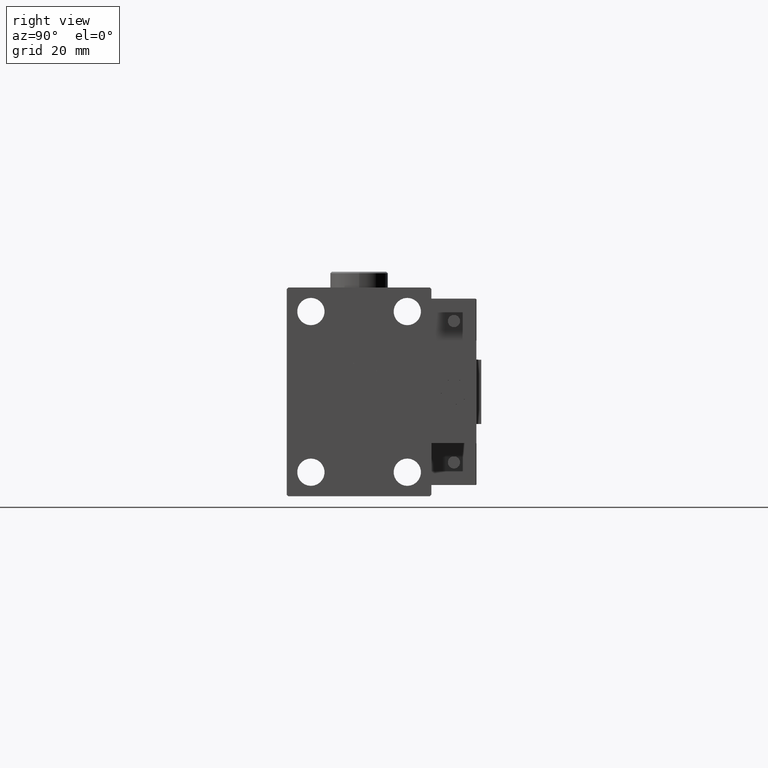
[diagram: clean part render]
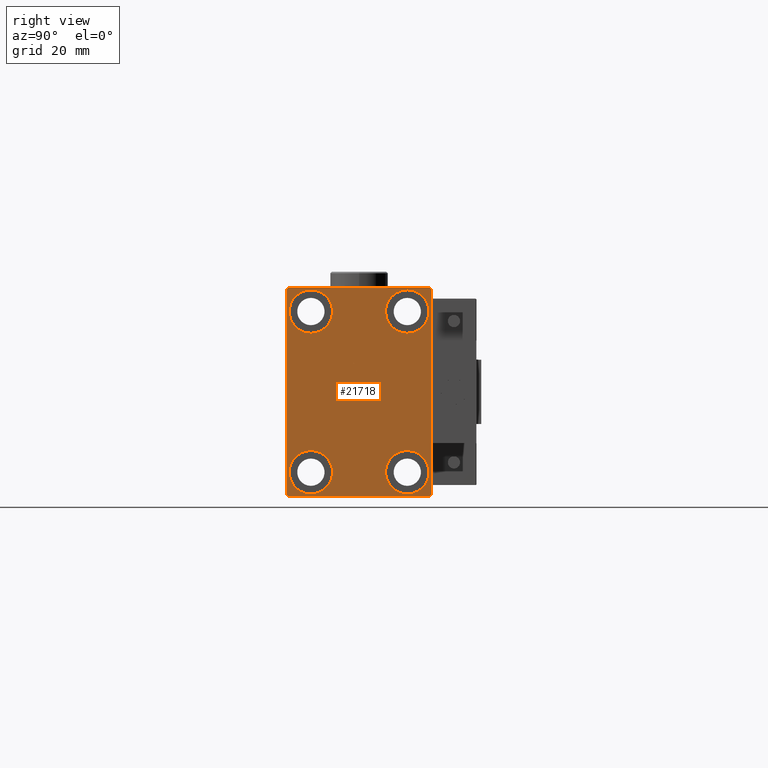
[diagram: same view with one face highlighted and labeled with its STEP entity id]
A machine part, right view. The second image highlights one B-rep face of the part: STEP entity #21718.
In plain terms, the highlighted planar face has unit normal (1, 0, 0).
Its self-contained STEP definition (entity closure, byte-faithful):
#354 = DIRECTION ( 'NONE',  ( -0.000000000000000000, 0.7071067811865524577, 0.7071067811865426878 ) ) ;
#456 = CARTESIAN_POINT ( 'NONE',  ( 90.00000000000000000, -27.25000000000061817, -27.24999999999910827 ) ) ;
#506 = DIRECTION ( 'NONE',  ( 0.000000000000000000, 1.000000000000000000, 0.000000000000000000 ) ) ;
#717 = DIRECTION ( 'NONE',  ( -0.000000000000000000, 0.7071067811865279218, -0.7071067811865671127 ) ) ;
#880 = CARTESIAN_POINT ( 'NONE',  ( 90.00000000000000000, 27.24999999999985434, -27.25000000000023093 ) ) ;
#1129 = DIRECTION ( 'NONE',  ( -1.000000000000000000, -0.000000000000000000, -0.000000000000000000 ) ) ;
#1262 = CARTESIAN_POINT ( 'NONE',  ( 90.00000000000000000, 22.50000000000000000, -32.00000000000002132 ) ) ;
#2102 = VECTOR ( 'NONE', #354, 1000.000000000000000 ) ;
#2184 = VERTEX_POINT ( 'NONE', #12863 ) ;
#2573 = FACE_BOUND ( 'NONE', #20499, .T. ) ;
#2943 = ORIENTED_EDGE ( 'NONE', *, *, #15583, .T. ) ;
#3164 = CARTESIAN_POINT ( 'NONE',  ( 90.00000000000000000, -14.99999999999999645, 25.00000000000000000 ) ) ;
#3441 = EDGE_CURVE ( 'NONE', #25162, #16348, #25430, .T. ) ;
#3451 = CARTESIAN_POINT ( 'NONE',  ( 90.00000000000000000, 14.99999999999999645, -25.00000000000000000 ) ) ;
#3574 = VECTOR ( 'NONE', #51483, 1000.000000000000000 ) ;
#4292 = EDGE_CURVE ( 'NONE', #16348, #25162, #35011, .T. ) ;
#4415 = LINE ( 'NONE', #26384, #36968 ) ;
#4517 = DIRECTION ( 'NONE',  ( 0.000000000000000000, 0.000000000000000000, 1.000000000000000000 ) ) ;
#5072 = VERTEX_POINT ( 'NONE', #30158 ) ;
#6631 = ORIENTED_EDGE ( 'NONE', *, *, #14064, .T. ) ;
#7247 = PLANE ( 'NONE',  #33831 ) ;
#7372 = AXIS2_PLACEMENT_3D ( 'NONE', #3164, #37283, #29003 ) ;
#7391 = ORIENTED_EDGE ( 'NONE', *, *, #29006, .T. ) ;
#7806 = ORIENTED_EDGE ( 'NONE', *, *, #29067, .T. ) ;
#7842 = DIRECTION ( 'NONE',  ( -1.000000000000000000, -0.000000000000000000, -0.000000000000000000 ) ) ;
#8086 = EDGE_CURVE ( 'NONE', #20500, #39597, #50553, .T. ) ;
#9762 = LINE ( 'NONE', #456, #27449 ) ;
#9939 = VECTOR ( 'NONE', #25214, 999.9999999999998863 ) ;
#10013 = VERTEX_POINT ( 'NONE', #27141 ) ;
#10443 = EDGE_CURVE ( 'NONE', #44156, #25782, #28729, .T. ) ;
#10633 = EDGE_LOOP ( 'NONE', ( #23398, #7806, #46210, #25529, #36848, #2943, #49123, #6631 ) ) ;
#11161 = DIRECTION ( 'NONE',  ( -1.000000000000000000, -0.000000000000000000, -0.000000000000000000 ) ) ;
#11372 = CARTESIAN_POINT ( 'NONE',  ( 90.00000000000000000, 0.000000000000000000, 0.000000000000000000 ) ) ;
#11423 = AXIS2_PLACEMENT_3D ( 'NONE', #3451, #11161, #15548 ) ;
#11518 = EDGE_LOOP ( 'NONE', ( #24243, #7391 ) ) ;
#12863 = CARTESIAN_POINT ( 'NONE',  ( 90.00000000000000000, -22.50000000000000711, 31.99999999999999289 ) ) ;
#13244 = LINE ( 'NONE', #880, #2102 ) ;
#14064 = EDGE_CURVE ( 'NONE', #25782, #10013, #40435, .T. ) ;
#14067 = CARTESIAN_POINT ( 'NONE',  ( 90.00000000000000000, 22.49999999999999289, 32.50000000000000000 ) ) ;
#14323 = ORIENTED_EDGE ( 'NONE', *, *, #18630, .T. ) ;
#15212 = DIRECTION ( 'NONE',  ( 1.000000000000000000, 0.000000000000000000, 0.000000000000000000 ) ) ;
#15548 = DIRECTION ( 'NONE',  ( 0.000000000000000000, 0.000000000000000000, 1.000000000000000000 ) ) ;
#15583 = EDGE_CURVE ( 'NONE', #39597, #44156, #13244, .T. ) ;
#16348 = VERTEX_POINT ( 'NONE', #46339 ) ;
#16491 = CARTESIAN_POINT ( 'NONE',  ( 90.00000000000000000, -15.00000000000000355, -25.00000000000000000 ) ) ;
#17172 = DIRECTION ( 'NONE',  ( -1.000000000000000000, -0.000000000000000000, -0.000000000000000000 ) ) ;
#18630 = EDGE_CURVE ( 'NONE', #46523, #30368, #38129, .T. ) ;
#18802 = FACE_BOUND ( 'NONE', #26112, .T. ) ;
#19344 = FACE_OUTER_BOUND ( 'NONE', #10633, .T. ) ;
#19631 = DIRECTION ( 'NONE',  ( 0.000000000000000000, 0.000000000000000000, -1.000000000000000000 ) ) ;
#20006 = EDGE_CURVE ( 'NONE', #30173, #32873, #40793, .T. ) ;
#20220 = CARTESIAN_POINT ( 'NONE',  ( 90.00000000000000000, 15.00000000000000355, 25.00000000000000000 ) ) ;
#20499 = EDGE_LOOP ( 'NONE', ( #35066, #32327 ) ) ;
#20500 = VERTEX_POINT ( 'NONE', #20767 ) ;
#20767 = CARTESIAN_POINT ( 'NONE',  ( 90.00000000000000000, -22.00000000000002132, -32.50000000000000711 ) ) ;
#21718 = ADVANCED_FACE ( 'NONE', ( #2573, #49040, #52353, #18802, #19344 ), #7247, .T. ) ;
#22288 = DIRECTION ( 'NONE',  ( 0.000000000000000000, 0.000000000000000000, 1.000000000000000000 ) ) ;
#23398 = ORIENTED_EDGE ( 'NONE', *, *, #53466, .T. ) ;
#23596 = CARTESIAN_POINT ( 'NONE',  ( 90.00000000000000000, 15.00000000000000355, 31.75000000000000000 ) ) ;
#24243 = ORIENTED_EDGE ( 'NONE', *, *, #25596, .T. ) ;
#24328 = CARTESIAN_POINT ( 'NONE',  ( 90.00000000000000000, 22.50000000000000000, -32.50000000000000711 ) ) ;
#24466 = ORIENTED_EDGE ( 'NONE', *, *, #35673, .T. ) ;
#25162 = VERTEX_POINT ( 'NONE', #50313 ) ;
#25214 = DIRECTION ( 'NONE',  ( 0.000000000000000000, -0.7071067811865525687, -0.7071067811865425767 ) ) ;
#25430 = CIRCLE ( 'NONE', #31586, 6.749999999999999112 ) ;
#25529 = ORIENTED_EDGE ( 'NONE', *, *, #28258, .T. ) ;
#25596 = EDGE_CURVE ( 'NONE', #32429, #45229, #48397, .T. ) ;
#25641 = CARTESIAN_POINT ( 'NONE',  ( 90.00000000000000000, -15.00000000000000355, -18.25000000000000355 ) ) ;
#25782 = VERTEX_POINT ( 'NONE', #35593 ) ;
#25881 = CARTESIAN_POINT ( 'NONE',  ( 90.00000000000000000, 14.99999999999999645, -25.00000000000000000 ) ) ;
#26112 = EDGE_LOOP ( 'NONE', ( #24466, #37656 ) ) ;
#26345 = VECTOR ( 'NONE', #506, 1000.000000000000000 ) ;
#26384 = CARTESIAN_POINT ( 'NONE',  ( 90.00000000000000000, -22.50000000000000711, 32.49999999999999289 ) ) ;
#26433 = CIRCLE ( 'NONE', #40522, 6.749999999999999112 ) ;
#26939 = CARTESIAN_POINT ( 'NONE',  ( 90.00000000000000000, 27.25000000000045475, 27.24999999999932143 ) ) ;
#27141 = CARTESIAN_POINT ( 'NONE',  ( 90.00000000000000000, 21.99999999999999289, 32.50000000000000000 ) ) ;
#27207 = EDGE_LOOP ( 'NONE', ( #14323, #40216 ) ) ;
#27449 = VECTOR ( 'NONE', #717, 1000.000000000000000 ) ;
#28258 = EDGE_CURVE ( 'NONE', #28481, #20500, #9762, .T. ) ;
#28481 = VERTEX_POINT ( 'NONE', #46840 ) ;
#28538 = AXIS2_PLACEMENT_3D ( 'NONE', #34761, #17172, #42729 ) ;
#28729 = LINE ( 'NONE', #24328, #50158 ) ;
#28879 = DIRECTION ( 'NONE',  ( 0.000000000000000000, 0.000000000000000000, 1.000000000000000000 ) ) ;
#29003 = DIRECTION ( 'NONE',  ( 0.000000000000000000, 0.000000000000000000, 1.000000000000000000 ) ) ;
#29006 = EDGE_CURVE ( 'NONE', #45229, #32429, #44173, .T. ) ;
#29067 = EDGE_CURVE ( 'NONE', #5072, #2184, #31287, .T. ) ;
#29274 = AXIS2_PLACEMENT_3D ( 'NONE', #36547, #36268, #48330 ) ;
#30158 = CARTESIAN_POINT ( 'NONE',  ( 90.00000000000000000, -21.99999999999998579, 32.49999999999999289 ) ) ;
#30173 = VERTEX_POINT ( 'NONE', #25641 ) ;
#30368 = VERTEX_POINT ( 'NONE', #37463 ) ;
#31134 = CIRCLE ( 'NONE', #28538, 6.749999999999999112 ) ;
#31287 = LINE ( 'NONE', #32939, #9939 ) ;
#31586 = AXIS2_PLACEMENT_3D ( 'NONE', #25881, #1129, #22288 ) ;
#32327 = ORIENTED_EDGE ( 'NONE', *, *, #4292, .T. ) ;
#32429 = VERTEX_POINT ( 'NONE', #53493 ) ;
#32745 = CARTESIAN_POINT ( 'NONE',  ( 90.00000000000000000, -14.99999999999999645, 18.25000000000000355 ) ) ;
#32873 = VERTEX_POINT ( 'NONE', #44300 ) ;
#32939 = CARTESIAN_POINT ( 'NONE',  ( 90.00000000000000000, -27.24999999999984368, 27.25000000000022382 ) ) ;
#33267 = DIRECTION ( 'NONE',  ( -1.000000000000000000, -0.000000000000000000, -0.000000000000000000 ) ) ;
#33580 = DIRECTION ( 'NONE',  ( 0.000000000000000000, 0.000000000000000000, -1.000000000000000000 ) ) ;
#33831 = AXIS2_PLACEMENT_3D ( 'NONE', #11372, #15212, #19631 ) ;
#34061 = CARTESIAN_POINT ( 'NONE',  ( 90.00000000000000000, -22.50000000000000711, -32.50000000000000711 ) ) ;
#34326 = DIRECTION ( 'NONE',  ( 0.000000000000000000, 0.000000000000000000, 1.000000000000000000 ) ) ;
#34761 = CARTESIAN_POINT ( 'NONE',  ( 90.00000000000000000, -15.00000000000000355, -25.00000000000000000 ) ) ;
#35011 = CIRCLE ( 'NONE', #11423, 6.749999999999999112 ) ;
#35066 = ORIENTED_EDGE ( 'NONE', *, *, #3441, .T. ) ;
#35593 = CARTESIAN_POINT ( 'NONE',  ( 90.00000000000000000, 22.49999999999999289, 31.99999999999997868 ) ) ;
#35673 = EDGE_CURVE ( 'NONE', #32873, #30173, #31134, .T. ) ;
#36120 = AXIS2_PLACEMENT_3D ( 'NONE', #20220, #7842, #4517 ) ;
#36268 = DIRECTION ( 'NONE',  ( -1.000000000000000000, -0.000000000000000000, -0.000000000000000000 ) ) ;
#36547 = CARTESIAN_POINT ( 'NONE',  ( 90.00000000000000000, 15.00000000000000355, 25.00000000000000000 ) ) ;
#36848 = ORIENTED_EDGE ( 'NONE', *, *, #8086, .T. ) ;
#36968 = VECTOR ( 'NONE', #33580, 1000.000000000000000 ) ;
#37283 = DIRECTION ( 'NONE',  ( -1.000000000000000000, -0.000000000000000000, -0.000000000000000000 ) ) ;
#37463 = CARTESIAN_POINT ( 'NONE',  ( 90.00000000000000000, -14.99999999999999645, 31.75000000000000000 ) ) ;
#37656 = ORIENTED_EDGE ( 'NONE', *, *, #20006, .T. ) ;
#38129 = CIRCLE ( 'NONE', #7372, 6.749999999999999112 ) ;
#39597 = VERTEX_POINT ( 'NONE', #41820 ) ;
#39902 = DIRECTION ( 'NONE',  ( -0.000000000000000000, -0.7071067811865328068, 0.7071067811865622277 ) ) ;
#40216 = ORIENTED_EDGE ( 'NONE', *, *, #51576, .T. ) ;
#40435 = LINE ( 'NONE', #26939, #53839 ) ;
#40522 = AXIS2_PLACEMENT_3D ( 'NONE', #51366, #50562, #34326 ) ;
#40793 = CIRCLE ( 'NONE', #44294, 6.749999999999999112 ) ;
#41820 = CARTESIAN_POINT ( 'NONE',  ( 90.00000000000000000, 21.99999999999999289, -32.50000000000000711 ) ) ;
#42729 = DIRECTION ( 'NONE',  ( 0.000000000000000000, 0.000000000000000000, 1.000000000000000000 ) ) ;
#44156 = VERTEX_POINT ( 'NONE', #1262 ) ;
#44173 = CIRCLE ( 'NONE', #29274, 6.749999999999999112 ) ;
#44294 = AXIS2_PLACEMENT_3D ( 'NONE', #16491, #33267, #28879 ) ;
#44300 = CARTESIAN_POINT ( 'NONE',  ( 90.00000000000000000, -15.00000000000000355, -31.75000000000000000 ) ) ;
#45229 = VERTEX_POINT ( 'NONE', #23596 ) ;
#45498 = DIRECTION ( 'NONE',  ( 0.000000000000000000, -1.067522139062650425E-16, 1.000000000000000000 ) ) ;
#46210 = ORIENTED_EDGE ( 'NONE', *, *, #50188, .T. ) ;
#46339 = CARTESIAN_POINT ( 'NONE',  ( 90.00000000000000000, 14.99999999999999645, -18.25000000000000355 ) ) ;
#46523 = VERTEX_POINT ( 'NONE', #32745 ) ;
#46840 = CARTESIAN_POINT ( 'NONE',  ( 90.00000000000000000, -22.50000000000000711, -31.99999999999999289 ) ) ;
#48163 = LINE ( 'NONE', #14067, #3574 ) ;
#48330 = DIRECTION ( 'NONE',  ( 0.000000000000000000, 0.000000000000000000, 1.000000000000000000 ) ) ;
#48397 = CIRCLE ( 'NONE', #36120, 6.749999999999999112 ) ;
#49040 = FACE_BOUND ( 'NONE', #27207, .T. ) ;
#49123 = ORIENTED_EDGE ( 'NONE', *, *, #10443, .T. ) ;
#50158 = VECTOR ( 'NONE', #45498, 1000.000000000000000 ) ;
#50188 = EDGE_CURVE ( 'NONE', #2184, #28481, #4415, .T. ) ;
#50313 = CARTESIAN_POINT ( 'NONE',  ( 90.00000000000000000, 14.99999999999999645, -31.75000000000000000 ) ) ;
#50553 = LINE ( 'NONE', #34061, #26345 ) ;
#50562 = DIRECTION ( 'NONE',  ( -1.000000000000000000, -0.000000000000000000, -0.000000000000000000 ) ) ;
#51366 = CARTESIAN_POINT ( 'NONE',  ( 90.00000000000000000, -14.99999999999999645, 25.00000000000000000 ) ) ;
#51483 = DIRECTION ( 'NONE',  ( 0.000000000000000000, -1.000000000000000000, -1.541976423090495387E-16 ) ) ;
#51576 = EDGE_CURVE ( 'NONE', #30368, #46523, #26433, .T. ) ;
#52353 = FACE_BOUND ( 'NONE', #11518, .T. ) ;
#53466 = EDGE_CURVE ( 'NONE', #10013, #5072, #48163, .T. ) ;
#53493 = CARTESIAN_POINT ( 'NONE',  ( 90.00000000000000000, 15.00000000000000355, 18.25000000000000355 ) ) ;
#53839 = VECTOR ( 'NONE', #39902, 1000.000000000000000 ) ;